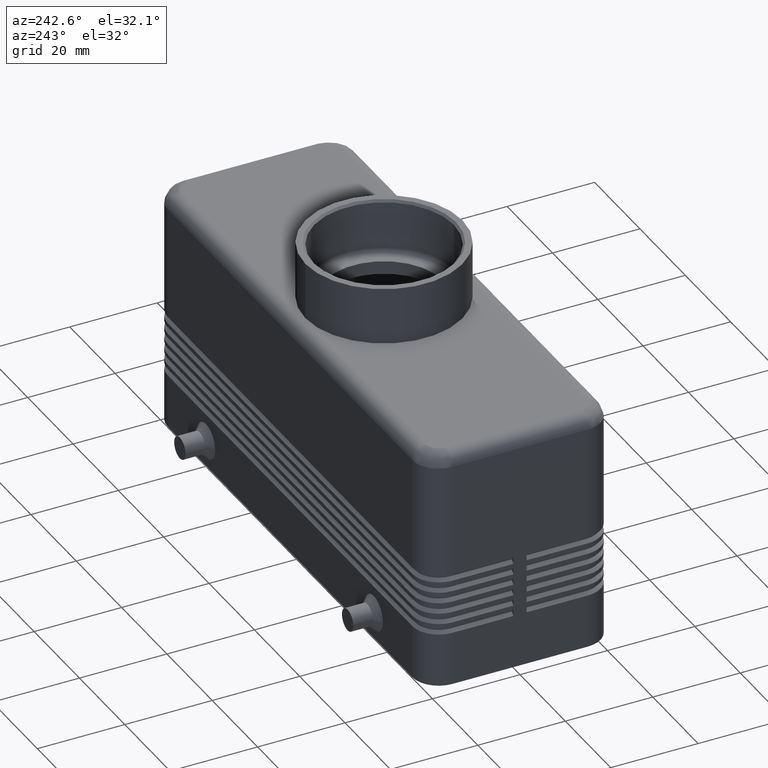
[diagram: clean part render]
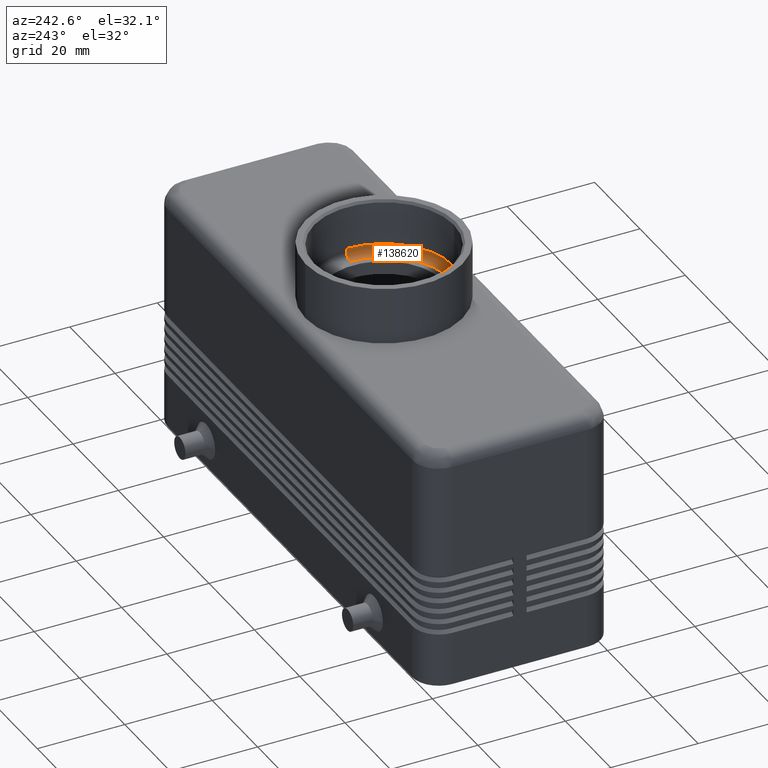
[diagram: same view with one face highlighted and labeled with its STEP entity id]
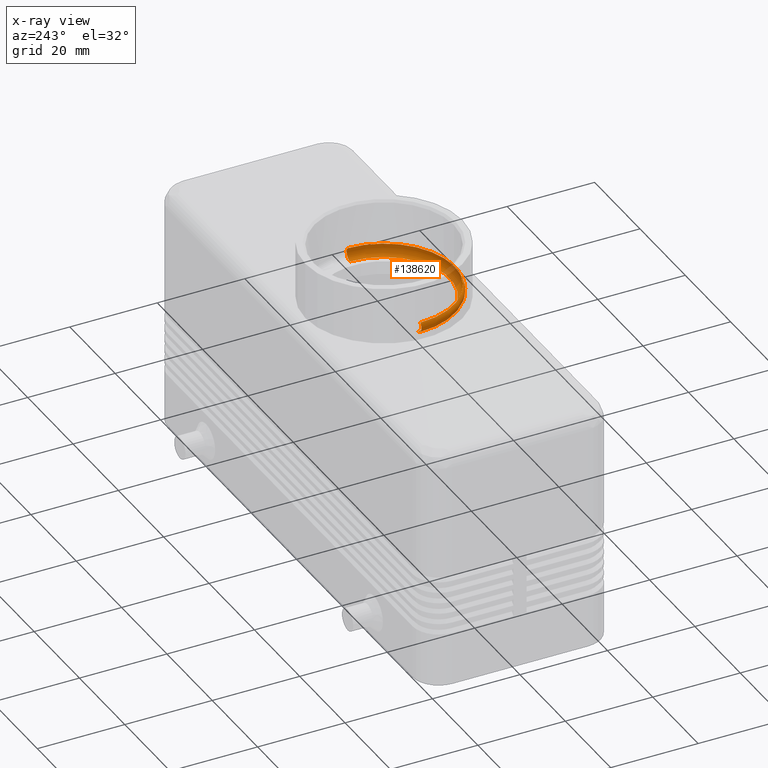
[diagram: x-ray of the same camera — body ghosted, the highlighted face saturated]
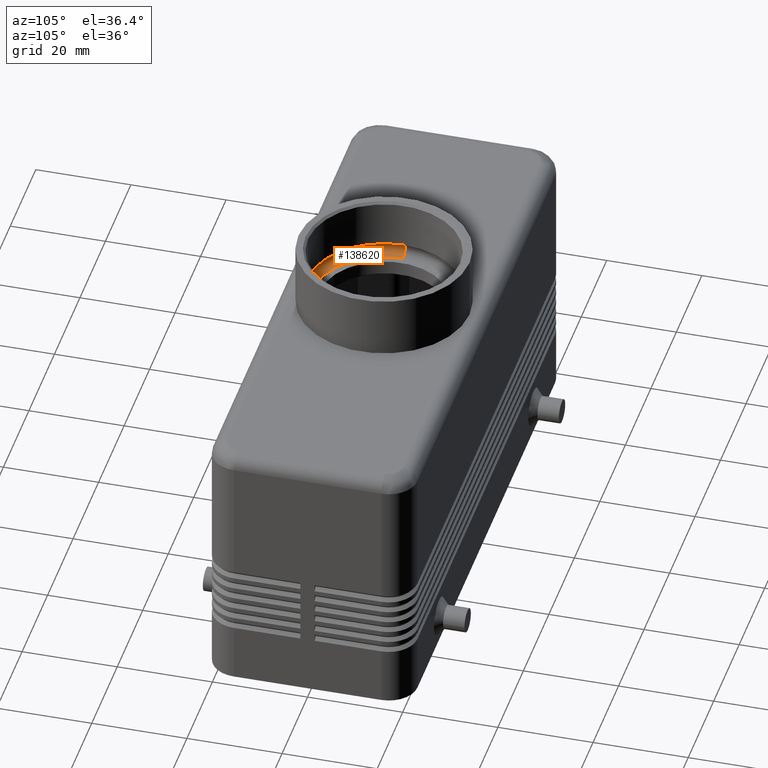
[diagram: same view with one face highlighted and labeled with its STEP entity id]
A machine part, auxiliary view. The second image highlights one B-rep face of the part: STEP entity #138620.
The next image is the same camera in x-ray: the body ghosted, the highlighted face saturated — about 10% of this face is hidden behind the body in this view.
A second angle (auxiliary view) of the same face is appended — the face is thin or edge-on in the first view.
In plain terms, the highlighted toroidal blend (fillet) surface has major radius 15 mm and minor (blend) radius 1.5 mm.
Its self-contained STEP definition (entity closure, byte-faithful):
#60=CARTESIAN_POINT('',(0.,-3.941498E-15,57.6180339887499));
#70=DIRECTION('',(0.,0.,-1.));
#80=DIRECTION('',(0.,1.,0.));
#90=AXIS2_PLACEMENT_3D('',#60,#70,#80);
#100=CIRCLE('',#90,16.);
#130=CARTESIAN_POINT('',(16.,-6.61996161111816E-15,57.6180339887499));
#140=VERTEX_POINT('',#130);
#170=CARTESIAN_POINT('',(15.,-6.277802E-15,56.5));
#180=DIRECTION('',(-1.81672554746633E-16,-1.,-1.43543987022242E-16));
#190=DIRECTION('',(-1.,1.81672554746633E-16,0.));
#200=AXIS2_PLACEMENT_3D('',#170,#180,#190);
#210=CIRCLE('',#200,1.49999999999999);
#220=CARTESIAN_POINT('',(15.,-6.06248601946663E-15,55.));
#230=VERTEX_POINT('',#220);
#240=EDGE_CURVE('',#230,#140,#210,.T.);
#260=CARTESIAN_POINT('',(0.,-3.355793E-15,55.));
#270=DIRECTION('',(0.,0.,1.));
#280=DIRECTION('',(0.,1.,0.));
#290=AXIS2_PLACEMENT_3D('',#260,#270,#280);
#300=CIRCLE('',#290,15.);
#310=CARTESIAN_POINT('',(-15.,-6.1230937706764E-16,55.));
#320=VERTEX_POINT('',#310);
#350=CARTESIAN_POINT('',(-15.,-8.27625357600997E-16,56.5));
#360=DIRECTION('',(1.81672554746633E-16,1.,1.43543987022242E-16));
#370=DIRECTION('',(1.,-1.81672554746633E-16,-8.19716542333758E-32));
#380=AXIS2_PLACEMENT_3D('',#350,#360,#370);
#390=CIRCLE('',#380,1.49999999999999);
#400=CARTESIAN_POINT('',(-16.,-8.06439859225914E-16,57.6180339887499));
#410=VERTEX_POINT('',#400);
#420=EDGE_CURVE('',#320,#410,#390,.T.);
#47670=CARTESIAN_POINT('',(1.95943487863576E-15,-16.,57.6180339887499));
#47680=VERTEX_POINT('',#47670);
#47690=EDGE_CURVE('',#47680,#410,#100,.T.);
#70110=EDGE_CURVE('',#320,#230,#300,.T.);
#137570=EDGE_CURVE('',#140,#47680,#100,.T.);
#138500=CARTESIAN_POINT('',(-3.5527136788005E-15,-3.5527136788005E-15,
56.5));
#138510=DIRECTION('',(1.49078242758396E-32,-1.43543987022242E-16,1.));
#138520=DIRECTION('',(1.,-1.81672554746633E-16,-4.09858271166879E-32));
#138530=AXIS2_PLACEMENT_3D('',#138500,#138510,#138520);
#138540=TOROIDAL_SURFACE('',#138530,15.,1.49999999999999);
#138550=ORIENTED_EDGE('',*,*,#137570,.F.);
#138560=ORIENTED_EDGE('',*,*,#47690,.F.);
#138570=ORIENTED_EDGE('',*,*,#420,.T.);
#138580=ORIENTED_EDGE('',*,*,#70110,.F.);
#138590=ORIENTED_EDGE('',*,*,#240,.F.);
#138600=EDGE_LOOP('',(#138590,#138580,#138570,#138560,#138550));
#138610=FACE_OUTER_BOUND('',#138600,.T.);
#138620=ADVANCED_FACE('',(#138610),#138540,.F.);